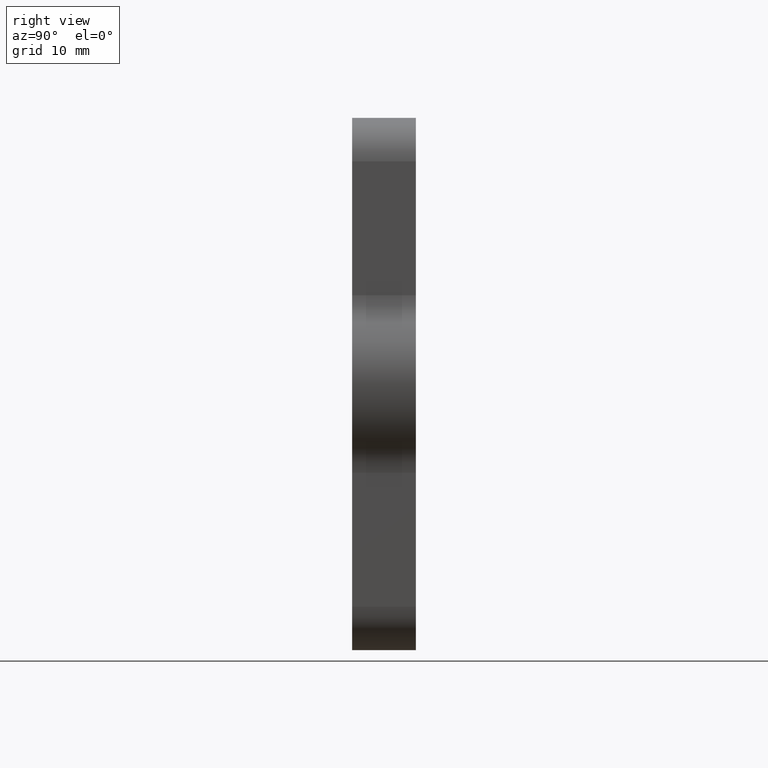
[diagram: clean part render]
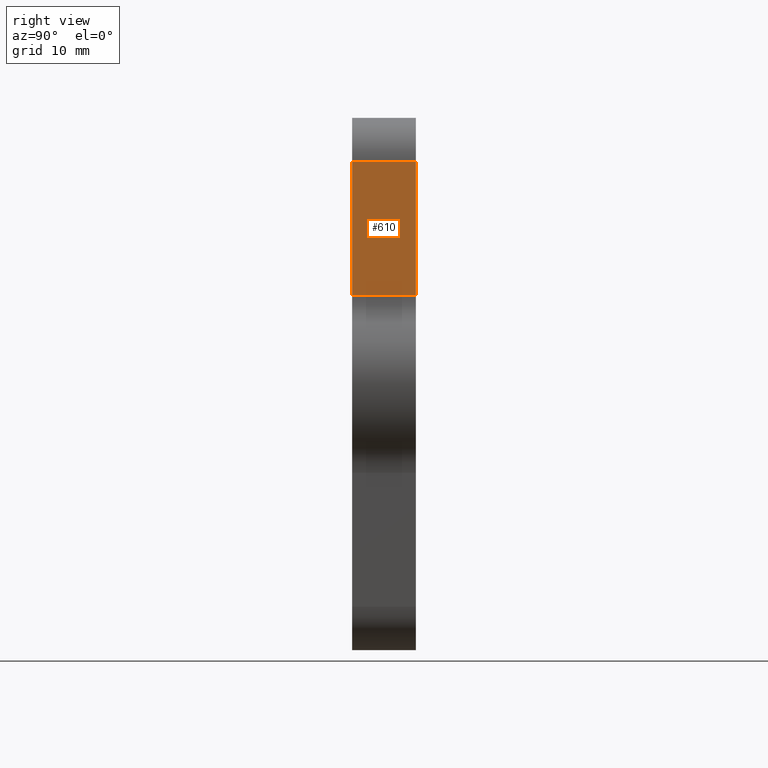
[diagram: same view with one face highlighted and labeled with its STEP entity id]
A machine part, right view. The second image highlights one B-rep face of the part: STEP entity #610.
In plain terms, the highlighted planar face has unit normal (-1, 0, 0).
Its self-contained STEP definition (entity closure, byte-faithful):
#12 = VECTOR ( 'NONE', #772, 39.37007874015748143 ) ;
#27 = ORIENTED_EDGE ( 'NONE', *, *, #476, .F. ) ;
#108 = LINE ( 'NONE', #1584, #462 ) ;
#150 = CARTESIAN_POINT ( 'NONE',  ( 2.500000000000000000, 0.3750000000000000555, -1.041533350395631663 ) ) ;
#364 = ORIENTED_EDGE ( 'NONE', *, *, #1709, .T. ) ;
#365 = CARTESIAN_POINT ( 'NONE',  ( 2.500000000000000000, 0.0000000000000000000, -1.041533350395631663 ) ) ;
#371 = CARTESIAN_POINT ( 'NONE',  ( 2.500000000000000000, 0.0000000000000000000, -0.2550000000000000044 ) ) ;
#462 = VECTOR ( 'NONE', #1931, 39.37007874015748143 ) ;
#476 = EDGE_CURVE ( 'NONE', #1191, #506, #1223, .T. ) ;
#506 = VERTEX_POINT ( 'NONE', #371 ) ;
#547 = EDGE_CURVE ( 'NONE', #1048, #553, #108, .T. ) ;
#548 = DIRECTION ( 'NONE',  ( 0.0000000000000000000, 0.0000000000000000000, 1.000000000000000000 ) ) ;
#553 = VERTEX_POINT ( 'NONE', #1047 ) ;
#582 = DIRECTION ( 'NONE',  ( -1.000000000000000000, 0.0000000000000000000, 0.0000000000000000000 ) ) ;
#610 = ADVANCED_FACE ( 'NONE', ( #2116 ), #745, .F. ) ;
#685 = DIRECTION ( 'NONE',  ( -0.0000000000000000000, -1.000000000000000000, -0.0000000000000000000 ) ) ;
#714 = EDGE_CURVE ( 'NONE', #1191, #1048, #2087, .T. ) ;
#745 = PLANE ( 'NONE',  #988 ) ;
#772 = DIRECTION ( 'NONE',  ( 0.0000000000000000000, 1.000000000000000000, 0.0000000000000000000 ) ) ;
#910 = CARTESIAN_POINT ( 'NONE',  ( 2.500000000000000000, 0.0000000000000000000, 0.0000000000000000000 ) ) ;
#988 = AXIS2_PLACEMENT_3D ( 'NONE', #910, #582, #1587 ) ;
#1033 = VECTOR ( 'NONE', #685, 39.37007874015748143 ) ;
#1047 = CARTESIAN_POINT ( 'NONE',  ( 2.500000000000000000, 0.3750000000000000555, -0.2550000000000000044 ) ) ;
#1048 = VERTEX_POINT ( 'NONE', #150 ) ;
#1191 = VERTEX_POINT ( 'NONE', #1277 ) ;
#1223 = LINE ( 'NONE', #1997, #1865 ) ;
#1277 = CARTESIAN_POINT ( 'NONE',  ( 2.500000000000000000, 0.0000000000000000000, -1.041533350395631663 ) ) ;
#1359 = CARTESIAN_POINT ( 'NONE',  ( 2.500000000000000000, 0.0000000000000000000, -0.2550000000000000044 ) ) ;
#1364 = ORIENTED_EDGE ( 'NONE', *, *, #547, .T. ) ;
#1584 = CARTESIAN_POINT ( 'NONE',  ( 2.500000000000000000, 0.3750000000000000555, -0.0000000000000000000 ) ) ;
#1587 = DIRECTION ( 'NONE',  ( 0.0000000000000000000, 0.0000000000000000000, 1.000000000000000000 ) ) ;
#1709 = EDGE_CURVE ( 'NONE', #553, #506, #2051, .T. ) ;
#1865 = VECTOR ( 'NONE', #548, 39.37007874015748143 ) ;
#1901 = EDGE_LOOP ( 'NONE', ( #27, #2149, #1364, #364 ) ) ;
#1931 = DIRECTION ( 'NONE',  ( 0.0000000000000000000, 0.0000000000000000000, 1.000000000000000000 ) ) ;
#1997 = CARTESIAN_POINT ( 'NONE',  ( 2.500000000000000000, 0.0000000000000000000, 0.0000000000000000000 ) ) ;
#2051 = LINE ( 'NONE', #1359, #1033 ) ;
#2087 = LINE ( 'NONE', #365, #12 ) ;
#2116 = FACE_OUTER_BOUND ( 'NONE', #1901, .T. ) ;
#2149 = ORIENTED_EDGE ( 'NONE', *, *, #714, .T. ) ;